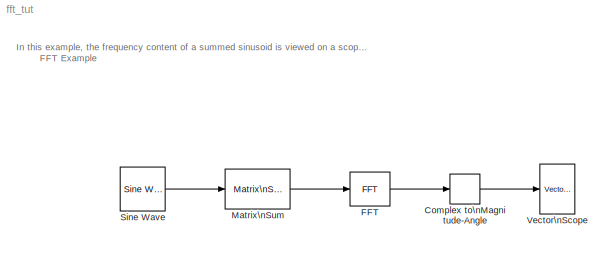
MODEL fft_tut
KIND model
CONFIG AbsTol = auto
CONFIG FixedStep = auto
CONFIG MaxStep = auto
CONFIG MinStep = auto
CONFIG PostLoadFcn = set_param(gcs,'SimulationCommand','Update')
CONFIG RelTol = 1e-3
CONFIG Solver = FixedStepDiscrete
CONFIG SolverMode = Auto
CONFIG StartTime = 0.0
CONFIG StopTime = inf
BLOCK [ComplexToMagnitudeAngle] Complex to\nMagnitude-Angle
  Output = Magnitude
  Ports = [1, 1]
BLOCK [Reference] FFT  REF=dspxfrm3/FFT
  Ports = [1, 1]
  SourceBlock = dspxfrm3/FFT
  SourceType = FFT
BLOCK [Reference] Matrix\nSum  REF=dspmtrx3/Matrix\nSum
  Dim = Rows
  Ports = [1, 1]
  SourceBlock = dspmtrx3/Matrix\nSum
  SourceType = Matrix Sum
BLOCK [Reference] Sine Wave  REF=dspsrcs3/Sine Wave
  Amplitude = 1
  CompMethod = Trigonometric Fcn
  Frequency = [15 40]
  OutComplex = Real
  Phase = 0
  Ports = [0, 1]
  ResetState = Restart at time zero
  SampleMode = Discrete
  SampleTime = 0.001
  SamplesPerFrame = 128
  SourceBlock = dspsrcs3/Sine Wave
  SourceType = Sine Wave
BLOCK [Reference] Vector\nScope  REF=dspsnks3/Vector\nScope
  AxisGrid = on
  AxisLegend = off
  AxisProperties = on
  AxisZoom = off
  DisplayProperties = off
  Domain = Frequency
  FigPos = get(0,'defaultfigureposition')
  FrameNumber = on
  HorizSpan = 1
  InheritXIncr = on
  LineProperties = off
  Memory = off
  OpenScopeAtSimStart = on
  OpenScopeImmediately = off
  Ports = [1]
  ScopeProperties = off
  SourceBlock = dspsnks3/Vector\nScope
  SourceType = Vector Scope
  XIncr = 1
  XLabel = Samples
  XRange = [0...Fs/2]
  XUnits = Hertz
  YLabel = Amplitude
  YMax = 69.3188381671759
  YMin = 0.0723692553519949
  YUnits = Magnitude
LINE Complex to\nMagnitude-Angle:1 -> Vector\nScope:1
LINE FFT:1 -> Complex to\nMagnitude-Angle:1
LINE Matrix\nSum:1 -> FFT:1
LINE Sine Wave:1 -> Matrix\nSum:1
